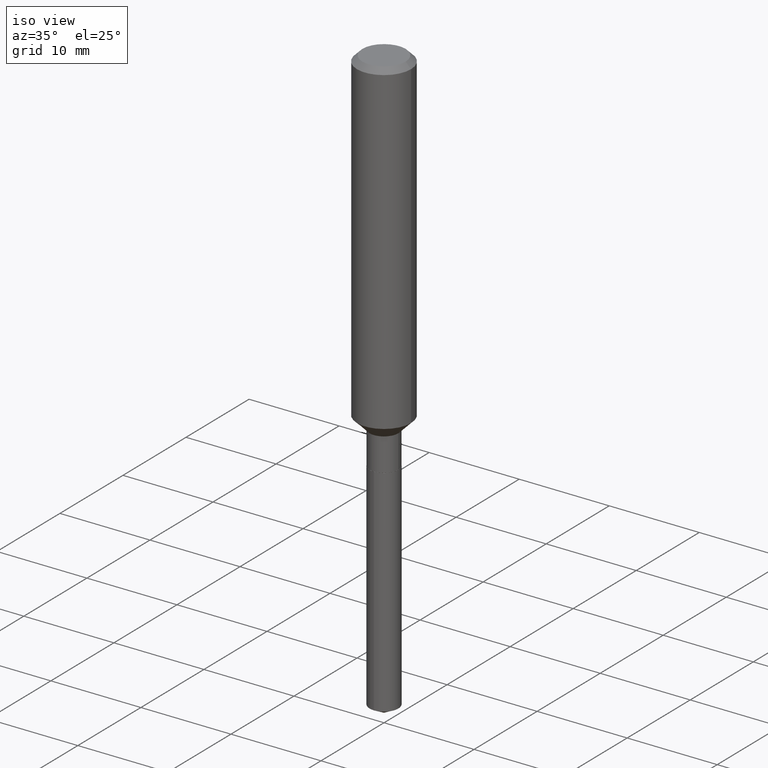
[diagram: clean part render]
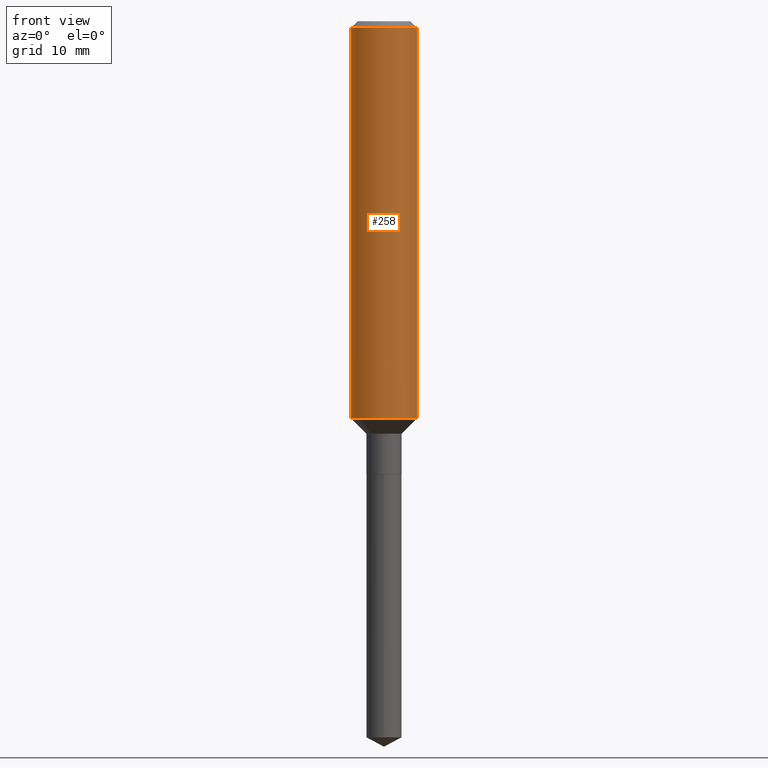
[diagram: tour spotlight — one face highlighted and labeled with its STEP entity id]
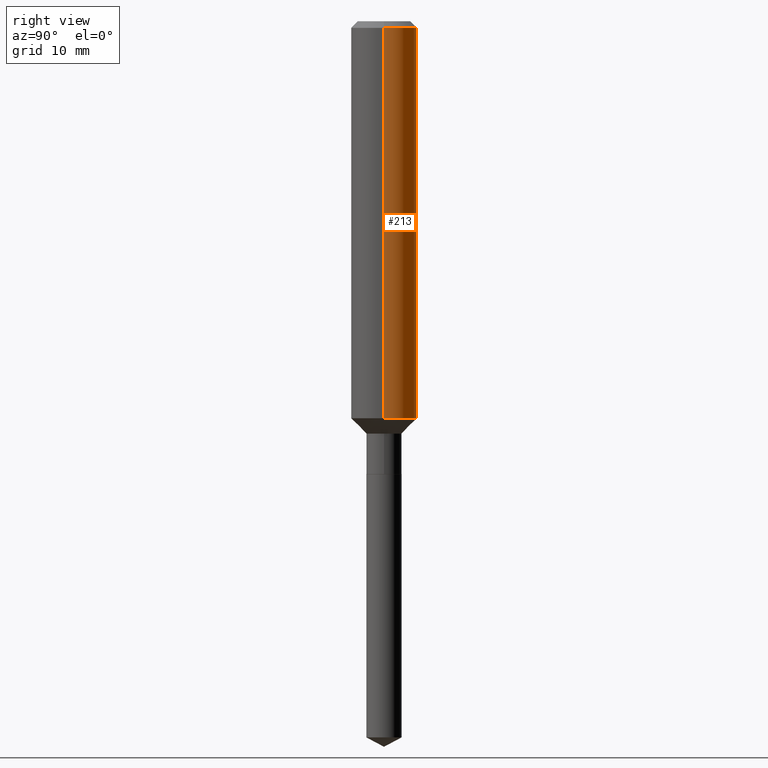
[diagram: tour spotlight — one face highlighted and labeled with its STEP entity id]
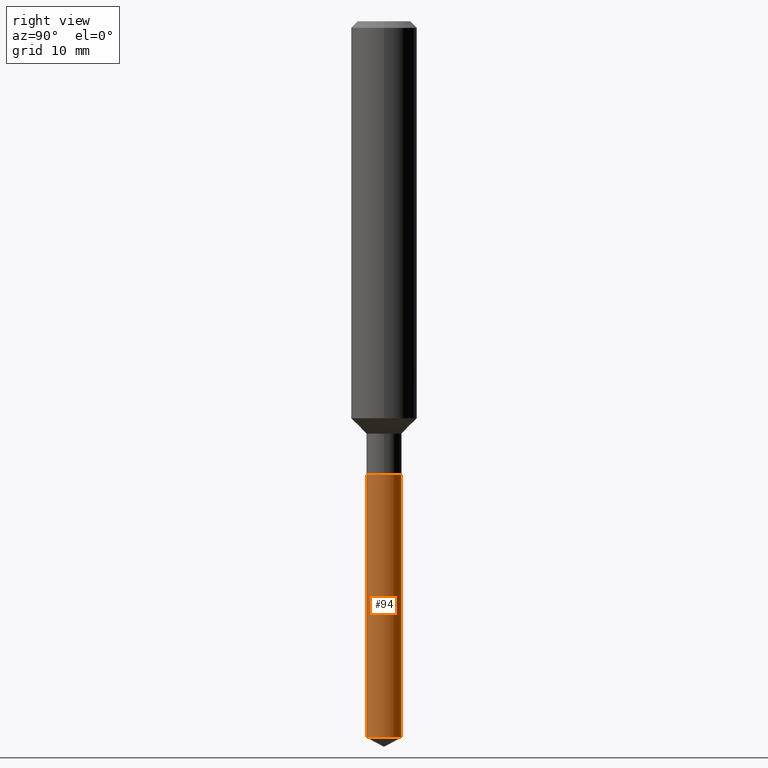
[diagram: tour spotlight — one face highlighted and labeled with its STEP entity id]
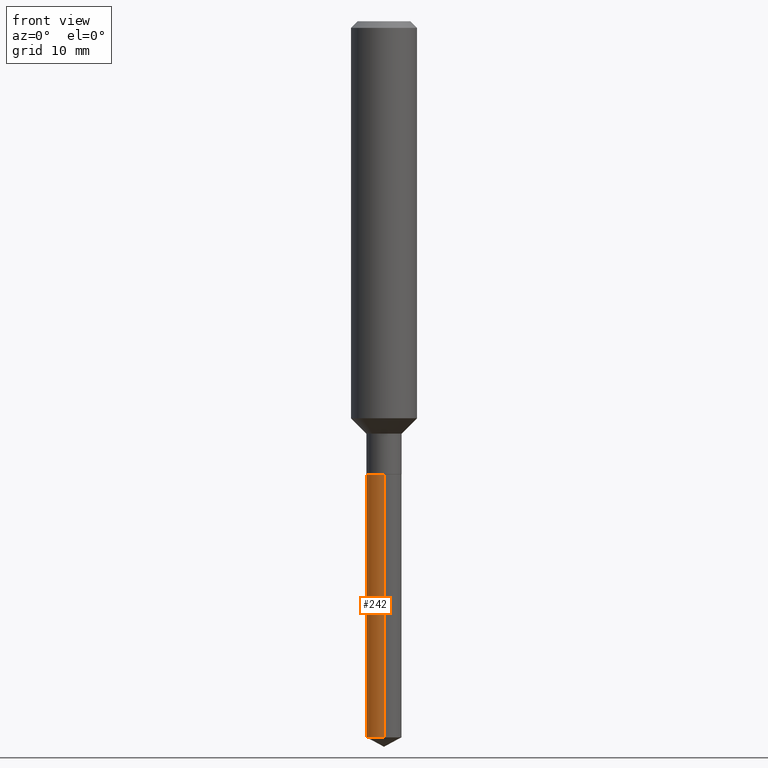
[diagram: tour spotlight — one face highlighted and labeled with its STEP entity id]
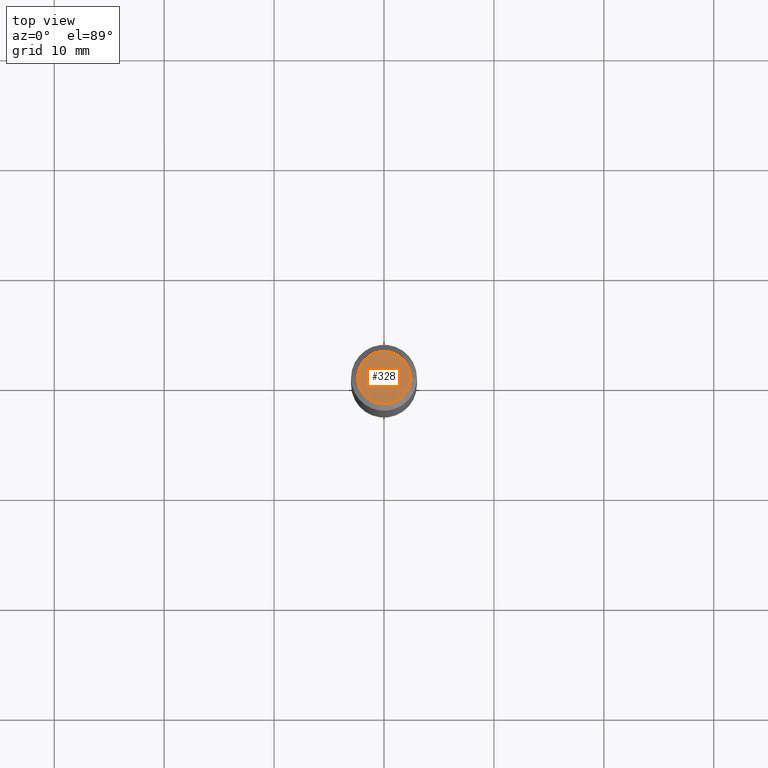
[diagram: tour spotlight — one face highlighted and labeled with its STEP entity id]
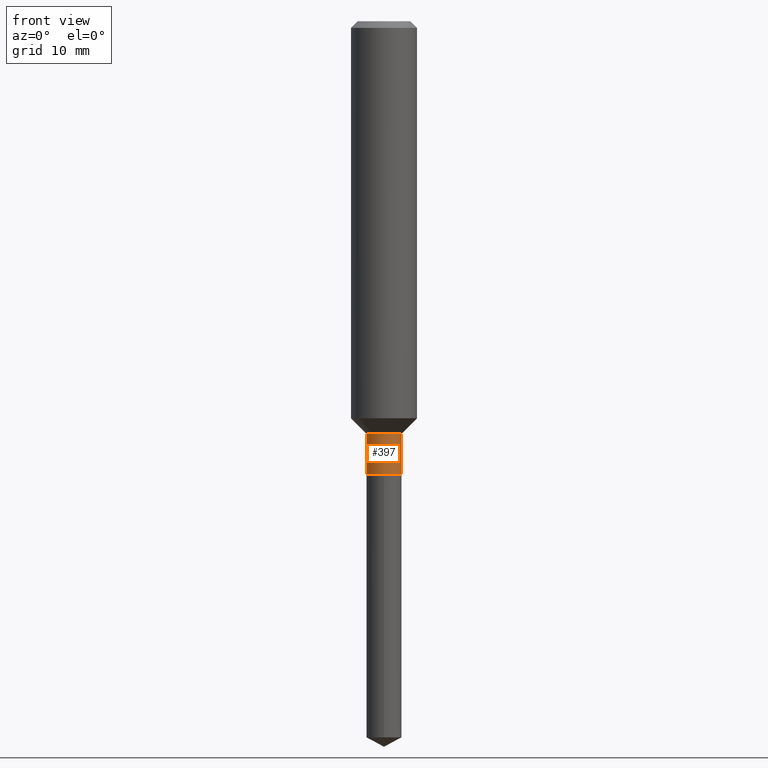
[diagram: tour spotlight — one face highlighted and labeled with its STEP entity id]
A machine part: a face-by-face anatomy tour. The part has 17 B-rep faces; the first image is the clean iso view, then the 6 largest visible faces are spotlighted one at a time (largest first), each with its STEP entity span.

Face 1 — front view, entity #258. In plain terms, the highlighted cylindrical surface (edge-blend (fillet) strip) has radius 2.9997 mm, axis along (-0, 0, 1).
Definition (entity closure, byte-faithful):
#14 = FACE_OUTER_BOUND ( 'NONE', #236, .T. ) ;
#42 = CIRCLE ( 'NONE', #251, 0.1180999999999999966 ) ;
#45 = DIRECTION ( 'NONE',  ( -2.445468806185136597E-29, 3.491481338843145583E-15, 1.000000000000000000 ) ) ;
#77 = CIRCLE ( 'NONE', #307, 0.1181000000000001632 ) ;
#91 = ORIENTED_EDGE ( 'NONE', *, *, #178, .T. ) ;
#95 = CARTESIAN_POINT ( 'NONE',  ( -0.1181000000000000799, 8.391509709326788873E-16, -5.809262341591047988E-30 ) ) ;
#110 = LINE ( 'NONE', #387, #118 ) ;
#113 = DIRECTION ( 'NONE',  ( 1.000000000000000000, -6.982962677686270655E-15, 0.000000000000000000 ) ) ;
#118 = VECTOR ( 'NONE', #240, 39.37007874015748143 ) ;
#120 = CARTESIAN_POINT ( 'NONE',  ( 0.000000000000000000, 0.000000000000000000, 0.000000000000000000 ) ) ;
#126 = VERTEX_POINT ( 'NONE', #190 ) ;
#129 = LINE ( 'NONE', #95, #471 ) ;
#144 = ORIENTED_EDGE ( 'NONE', *, *, #250, .T. ) ;
#160 = CARTESIAN_POINT ( 'NONE',  ( 0.1180999999999999966, -9.071566814582237199E-16, -0.02362000000000014435 ) ) ;
#173 = CARTESIAN_POINT ( 'NONE',  ( 5.776197320209328408E-31, -8.246878922347560526E-17, -0.02362000000000014435 ) ) ;
#178 = EDGE_CURVE ( 'NONE', #342, #473, #77, .T. ) ;
#188 = AXIS2_PLACEMENT_3D ( 'NONE', #120, #196, #200 ) ;
#190 = CARTESIAN_POINT ( 'NONE',  ( -0.1180999999999999966, -1.684526655596535031E-15, -0.02362000000000014435 ) ) ;
#196 = DIRECTION ( 'NONE',  ( -2.445468806185136597E-29, 3.491481338843145583E-15, 1.000000000000000000 ) ) ;
#200 = DIRECTION ( 'NONE',  ( 1.000000000000000000, -6.982962677686266711E-15, 4.876176775795936353E-29 ) ) ;
#207 = VERTEX_POINT ( 'NONE', #160 ) ;
#209 = DIRECTION ( 'NONE',  ( 1.000000000000000000, -6.982962677686266711E-15, 0.000000000000000000 ) ) ;
#236 = EDGE_LOOP ( 'NONE', ( #274, #91, #144, #485 ) ) ;
#240 = DIRECTION ( 'NONE',  ( -2.445468806185136877E-29, 3.491481338843145188E-15, 1.000000000000000000 ) ) ;
#243 = CARTESIAN_POINT ( 'NONE',  ( -0.1181000000000001632, -4.125735492902273590E-15, -1.421999999999999931 ) ) ;
#250 = EDGE_CURVE ( 'NONE', #473, #207, #110, .T. ) ;
#251 = AXIS2_PLACEMENT_3D ( 'NONE', #173, #477, #209 ) ;
#258 = ADVANCED_FACE ( 'NONE', ( #14 ), #466, .T. ) ;
#274 = ORIENTED_EDGE ( 'NONE', *, *, #357, .F. ) ;
#307 = AXIS2_PLACEMENT_3D ( 'NONE', #423, #45, #113 ) ;
#342 = VERTEX_POINT ( 'NONE', #243 ) ;
#357 = EDGE_CURVE ( 'NONE', #342, #126, #129, .T. ) ;
#387 = CARTESIAN_POINT ( 'NONE',  ( 0.1181000000000000799, -8.246878922347486570E-16, 5.758764772215004644E-30 ) ) ;
#390 = EDGE_CURVE ( 'NONE', #126, #207, #42, .T. ) ;
#399 = DIRECTION ( 'NONE',  ( -2.445468806185136877E-29, 3.491481338843145188E-15, 1.000000000000000000 ) ) ;
#423 = CARTESIAN_POINT ( 'NONE',  ( 3.477456642395264859E-29, -4.964886463834953365E-15, -1.421999999999999931 ) ) ;
#440 = CARTESIAN_POINT ( 'NONE',  ( 0.1181000000000001632, -5.789574356069702416E-15, -1.421999999999999931 ) ) ;
#466 = CYLINDRICAL_SURFACE ( 'NONE', #188, 0.1181000000000000799 ) ;
#471 = VECTOR ( 'NONE', #399, 39.37007874015748143 ) ;
#473 = VERTEX_POINT ( 'NONE', #440 ) ;
#477 = DIRECTION ( 'NONE',  ( -2.445468806185136597E-29, 3.491481338843145583E-15, 1.000000000000000000 ) ) ;
#485 = ORIENTED_EDGE ( 'NONE', *, *, #390, .F. ) ;

Face 2 — right view, entity #213. In plain terms, the highlighted cylindrical surface (edge-blend (fillet) strip) has radius 2.9997 mm, axis along (-0, 0, 1).
Definition (entity closure, byte-faithful):
#4 = AXIS2_PLACEMENT_3D ( 'NONE', #259, #373, #148 ) ;
#9 = CARTESIAN_POINT ( 'NONE',  ( 5.776197320209328408E-31, -8.246878922347560526E-17, -0.02362000000000014435 ) ) ;
#37 = EDGE_CURVE ( 'NONE', #473, #342, #266, .T. ) ;
#38 = CYLINDRICAL_SURFACE ( 'NONE', #438, 0.1181000000000000799 ) ;
#50 = ORIENTED_EDGE ( 'NONE', *, *, #37, .T. ) ;
#64 = ORIENTED_EDGE ( 'NONE', *, *, #357, .T. ) ;
#73 = EDGE_LOOP ( 'NONE', ( #50, #64, #311, #114 ) ) ;
#81 = DIRECTION ( 'NONE',  ( 1.000000000000000000, -6.982962677686266711E-15, 4.876176775795936353E-29 ) ) ;
#95 = CARTESIAN_POINT ( 'NONE',  ( -0.1181000000000000799, 8.391509709326788873E-16, -5.809262341591047988E-30 ) ) ;
#110 = LINE ( 'NONE', #387, #118 ) ;
#114 = ORIENTED_EDGE ( 'NONE', *, *, #250, .F. ) ;
#115 = CARTESIAN_POINT ( 'NONE',  ( 0.000000000000000000, 0.000000000000000000, 0.000000000000000000 ) ) ;
#118 = VECTOR ( 'NONE', #240, 39.37007874015748143 ) ;
#126 = VERTEX_POINT ( 'NONE', #190 ) ;
#129 = LINE ( 'NONE', #95, #471 ) ;
#148 = DIRECTION ( 'NONE',  ( 1.000000000000000000, -6.982962677686270655E-15, 0.000000000000000000 ) ) ;
#160 = CARTESIAN_POINT ( 'NONE',  ( 0.1180999999999999966, -9.071566814582237199E-16, -0.02362000000000014435 ) ) ;
#189 = CIRCLE ( 'NONE', #280, 0.1180999999999999966 ) ;
#190 = CARTESIAN_POINT ( 'NONE',  ( -0.1180999999999999966, -1.684526655596535031E-15, -0.02362000000000014435 ) ) ;
#206 = DIRECTION ( 'NONE',  ( 1.000000000000000000, -6.982962677686266711E-15, 0.000000000000000000 ) ) ;
#207 = VERTEX_POINT ( 'NONE', #160 ) ;
#213 = ADVANCED_FACE ( 'NONE', ( #469 ), #38, .T. ) ;
#240 = DIRECTION ( 'NONE',  ( -2.445468806185136877E-29, 3.491481338843145188E-15, 1.000000000000000000 ) ) ;
#243 = CARTESIAN_POINT ( 'NONE',  ( -0.1181000000000001632, -4.125735492902273590E-15, -1.421999999999999931 ) ) ;
#250 = EDGE_CURVE ( 'NONE', #473, #207, #110, .T. ) ;
#259 = CARTESIAN_POINT ( 'NONE',  ( 3.477456642395264859E-29, -4.964886463834953365E-15, -1.421999999999999931 ) ) ;
#266 = CIRCLE ( 'NONE', #4, 0.1181000000000001632 ) ;
#280 = AXIS2_PLACEMENT_3D ( 'NONE', #9, #351, #206 ) ;
#304 = EDGE_CURVE ( 'NONE', #207, #126, #189, .T. ) ;
#311 = ORIENTED_EDGE ( 'NONE', *, *, #304, .F. ) ;
#342 = VERTEX_POINT ( 'NONE', #243 ) ;
#351 = DIRECTION ( 'NONE',  ( -2.445468806185136597E-29, 3.491481338843145583E-15, 1.000000000000000000 ) ) ;
#357 = EDGE_CURVE ( 'NONE', #342, #126, #129, .T. ) ;
#373 = DIRECTION ( 'NONE',  ( -2.445468806185136597E-29, 3.491481338843145583E-15, 1.000000000000000000 ) ) ;
#387 = CARTESIAN_POINT ( 'NONE',  ( 0.1181000000000000799, -8.246878922347486570E-16, 5.758764772215004644E-30 ) ) ;
#399 = DIRECTION ( 'NONE',  ( -2.445468806185136877E-29, 3.491481338843145188E-15, 1.000000000000000000 ) ) ;
#426 = DIRECTION ( 'NONE',  ( -2.445468806185136597E-29, 3.491481338843145583E-15, 1.000000000000000000 ) ) ;
#438 = AXIS2_PLACEMENT_3D ( 'NONE', #115, #426, #81 ) ;
#440 = CARTESIAN_POINT ( 'NONE',  ( 0.1181000000000001632, -5.789574356069702416E-15, -1.421999999999999931 ) ) ;
#469 = FACE_OUTER_BOUND ( 'NONE', #73, .T. ) ;
#471 = VECTOR ( 'NONE', #399, 39.37007874015748143 ) ;
#473 = VERTEX_POINT ( 'NONE', #440 ) ;

Face 3 — right view, entity #94. In plain terms, the highlighted cylindrical surface (edge-blend (fillet) strip) has radius 1.6002 mm, axis along (-0, 0, 1).
Definition (entity closure, byte-faithful):
#25 = CARTESIAN_POINT ( 'NONE',  ( 4.476419235289259333E-16, 0.06299999999999433831, -1.622000000000000108 ) ) ;
#26 = DIRECTION ( 'NONE',  ( -2.439587243531311929E-29, 3.499904071321179502E-15, 1.000000000000000000 ) ) ;
#40 = EDGE_CURVE ( 'NONE', #66, #295, #406, .T. ) ;
#65 = FACE_OUTER_BOUND ( 'NONE', #252, .T. ) ;
#66 = VERTEX_POINT ( 'NONE', #143 ) ;
#94 = ADVANCED_FACE ( 'NONE', ( #65 ), #416, .T. ) ;
#128 = EDGE_CURVE ( 'NONE', #295, #327, #156, .T. ) ;
#133 = VECTOR ( 'NONE', #461, 39.37007874015748143 ) ;
#139 = EDGE_CURVE ( 'NONE', #366, #327, #157, .T. ) ;
#141 = ORIENTED_EDGE ( 'NONE', *, *, #128, .F. ) ;
#143 = CARTESIAN_POINT ( 'NONE',  ( -4.399266486941721593E-16, -0.06300000000000897937, -2.564902305805327298 ) ) ;
#156 = CIRCLE ( 'NONE', #244, 0.06300000000000000044 ) ;
#157 = LINE ( 'NONE', #388, #279 ) ;
#192 = ORIENTED_EDGE ( 'NONE', *, *, #40, .F. ) ;
#194 = CARTESIAN_POINT ( 'NONE',  ( 6.266842840771226956E-29, -8.963250350549775101E-15, -2.564902305805327298 ) ) ;
#216 = DIRECTION ( 'NONE',  ( -6.982962677686265922E-15, -1.000000000000000000, 4.336266656609941617E-15 ) ) ;
#227 = AXIS2_PLACEMENT_3D ( 'NONE', #368, #26, #216 ) ;
#244 = AXIS2_PLACEMENT_3D ( 'NONE', #334, #483, #413 ) ;
#245 = AXIS2_PLACEMENT_3D ( 'NONE', #194, #347, #270 ) ;
#252 = EDGE_LOOP ( 'NONE', ( #335, #486, #141, #192 ) ) ;
#270 = DIRECTION ( 'NONE',  ( -6.982962677686265133E-15, -1.000000000000000000, 0.000000000000000000 ) ) ;
#279 = VECTOR ( 'NONE', #313, 39.37007874015748143 ) ;
#284 = CARTESIAN_POINT ( 'NONE',  ( 4.476419235289257361E-16, 0.06299999999999104927, -2.564902305805327298 ) ) ;
#285 = CIRCLE ( 'NONE', #245, 0.06300000000000001432 ) ;
#291 = EDGE_CURVE ( 'NONE', #66, #366, #285, .T. ) ;
#295 = VERTEX_POINT ( 'NONE', #432 ) ;
#313 = DIRECTION ( 'NONE',  ( -2.439587243531311929E-29, 3.499904071321179897E-15, 1.000000000000000000 ) ) ;
#327 = VERTEX_POINT ( 'NONE', #25 ) ;
#334 = CARTESIAN_POINT ( 'NONE',  ( 3.966550403632290721E-29, -5.663182731603580825E-15, -1.621999999999999886 ) ) ;
#335 = ORIENTED_EDGE ( 'NONE', *, *, #291, .T. ) ;
#337 = CARTESIAN_POINT ( 'NONE',  ( -4.399266486941951349E-16, -0.06300000000000566258, -1.621999999999999442 ) ) ;
#347 = DIRECTION ( 'NONE',  ( -2.439587243531311929E-29, 3.499904071321179502E-15, 1.000000000000000000 ) ) ;
#366 = VERTEX_POINT ( 'NONE', #284 ) ;
#368 = CARTESIAN_POINT ( 'NONE',  ( 3.966550403632290721E-29, -5.663182731603580825E-15, -1.621999999999999886 ) ) ;
#388 = CARTESIAN_POINT ( 'NONE',  ( 4.476419235289027605E-16, 0.06299999999999433831, -1.622000000000000108 ) ) ;
#406 = LINE ( 'NONE', #337, #133 ) ;
#413 = DIRECTION ( 'NONE',  ( -6.982962677686265922E-15, -1.000000000000000000, 4.336266656609941617E-15 ) ) ;
#416 = CYLINDRICAL_SURFACE ( 'NONE', #227, 0.06300000000000000044 ) ;
#432 = CARTESIAN_POINT ( 'NONE',  ( -4.399266486941951349E-16, -0.06300000000000566258, -1.621999999999999442 ) ) ;
#461 = DIRECTION ( 'NONE',  ( -2.439587243531311929E-29, 3.499904071321179897E-15, 1.000000000000000000 ) ) ;
#483 = DIRECTION ( 'NONE',  ( -2.439587243531311929E-29, 3.499904071321179502E-15, 1.000000000000000000 ) ) ;
#486 = ORIENTED_EDGE ( 'NONE', *, *, #139, .T. ) ;

Face 4 — front view, entity #242. In plain terms, the highlighted cylindrical surface (edge-blend (fillet) strip) has radius 1.6002 mm, axis along (-0, 0, 1).
Definition (entity closure, byte-faithful):
#16 = CIRCLE ( 'NONE', #47, 0.06300000000000000044 ) ;
#25 = CARTESIAN_POINT ( 'NONE',  ( 4.476419235289259333E-16, 0.06299999999999433831, -1.622000000000000108 ) ) ;
#39 = DIRECTION ( 'NONE',  ( -2.439587243531311929E-29, 3.499904071321179502E-15, 1.000000000000000000 ) ) ;
#40 = EDGE_CURVE ( 'NONE', #66, #295, #406, .T. ) ;
#47 = AXIS2_PLACEMENT_3D ( 'NONE', #191, #39, #345 ) ;
#57 = EDGE_LOOP ( 'NONE', ( #346, #375, #232, #149 ) ) ;
#66 = VERTEX_POINT ( 'NONE', #143 ) ;
#82 = EDGE_CURVE ( 'NONE', #366, #66, #464, .T. ) ;
#84 = AXIS2_PLACEMENT_3D ( 'NONE', #229, #155, #305 ) ;
#133 = VECTOR ( 'NONE', #461, 39.37007874015748143 ) ;
#139 = EDGE_CURVE ( 'NONE', #366, #327, #157, .T. ) ;
#143 = CARTESIAN_POINT ( 'NONE',  ( -4.399266486941721593E-16, -0.06300000000000897937, -2.564902305805327298 ) ) ;
#149 = ORIENTED_EDGE ( 'NONE', *, *, #290, .F. ) ;
#155 = DIRECTION ( 'NONE',  ( -2.439587243531311929E-29, 3.499904071321179502E-15, 1.000000000000000000 ) ) ;
#157 = LINE ( 'NONE', #388, #279 ) ;
#191 = CARTESIAN_POINT ( 'NONE',  ( 3.966550403632290721E-29, -5.663182731603580825E-15, -1.621999999999999886 ) ) ;
#229 = CARTESIAN_POINT ( 'NONE',  ( 3.966550403632290721E-29, -5.663182731603580825E-15, -1.621999999999999886 ) ) ;
#232 = ORIENTED_EDGE ( 'NONE', *, *, #40, .T. ) ;
#235 = CYLINDRICAL_SURFACE ( 'NONE', #84, 0.06300000000000000044 ) ;
#242 = ADVANCED_FACE ( 'NONE', ( #463 ), #235, .T. ) ;
#262 = DIRECTION ( 'NONE',  ( -6.982962677686265133E-15, -1.000000000000000000, 0.000000000000000000 ) ) ;
#264 = DIRECTION ( 'NONE',  ( -2.439587243531311929E-29, 3.499904071321179502E-15, 1.000000000000000000 ) ) ;
#279 = VECTOR ( 'NONE', #313, 39.37007874015748143 ) ;
#284 = CARTESIAN_POINT ( 'NONE',  ( 4.476419235289257361E-16, 0.06299999999999104927, -2.564902305805327298 ) ) ;
#290 = EDGE_CURVE ( 'NONE', #327, #295, #16, .T. ) ;
#295 = VERTEX_POINT ( 'NONE', #432 ) ;
#305 = DIRECTION ( 'NONE',  ( -6.982962677686265922E-15, -1.000000000000000000, 4.336266656609941617E-15 ) ) ;
#313 = DIRECTION ( 'NONE',  ( -2.439587243531311929E-29, 3.499904071321179897E-15, 1.000000000000000000 ) ) ;
#327 = VERTEX_POINT ( 'NONE', #25 ) ;
#337 = CARTESIAN_POINT ( 'NONE',  ( -4.399266486941951349E-16, -0.06300000000000566258, -1.621999999999999442 ) ) ;
#345 = DIRECTION ( 'NONE',  ( -6.982962677686265922E-15, -1.000000000000000000, 4.336266656609941617E-15 ) ) ;
#346 = ORIENTED_EDGE ( 'NONE', *, *, #139, .F. ) ;
#348 = AXIS2_PLACEMENT_3D ( 'NONE', #451, #264, #262 ) ;
#366 = VERTEX_POINT ( 'NONE', #284 ) ;
#375 = ORIENTED_EDGE ( 'NONE', *, *, #82, .T. ) ;
#388 = CARTESIAN_POINT ( 'NONE',  ( 4.476419235289027605E-16, 0.06299999999999433831, -1.622000000000000108 ) ) ;
#406 = LINE ( 'NONE', #337, #133 ) ;
#432 = CARTESIAN_POINT ( 'NONE',  ( -4.399266486941951349E-16, -0.06300000000000566258, -1.621999999999999442 ) ) ;
#451 = CARTESIAN_POINT ( 'NONE',  ( 6.266842840771226956E-29, -8.963250350549775101E-15, -2.564902305805327298 ) ) ;
#461 = DIRECTION ( 'NONE',  ( -2.439587243531311929E-29, 3.499904071321179897E-15, 1.000000000000000000 ) ) ;
#463 = FACE_OUTER_BOUND ( 'NONE', #57, .T. ) ;
#464 = CIRCLE ( 'NONE', #348, 0.06300000000000001432 ) ;

Face 5 — top view, entity #328. In plain terms, the highlighted planar face has unit normal (0, -0, -1).
Definition (entity closure, byte-faithful):
#44 = DIRECTION ( 'NONE',  ( -2.445468806185136597E-29, 3.491481338843145583E-15, 1.000000000000000000 ) ) ;
#58 = AXIS2_PLACEMENT_3D ( 'NONE', #359, #59, #132 ) ;
#59 = DIRECTION ( 'NONE',  ( 2.438088387897960049E-29, -3.491481338843145188E-15, -1.000000000000000000 ) ) ;
#68 = CIRCLE ( 'NONE', #476, 0.09447999999999998066 ) ;
#80 = DIRECTION ( 'NONE',  ( -2.445468806185136597E-29, 3.491481338843145583E-15, 1.000000000000000000 ) ) ;
#132 = DIRECTION ( 'NONE',  ( -1.000000000000000000, 6.982962677686265922E-15, -4.876176775795935793E-29 ) ) ;
#135 = VERTEX_POINT ( 'NONE', #384 ) ;
#145 = EDGE_CURVE ( 'NONE', #135, #152, #68, .T. ) ;
#152 = VERTEX_POINT ( 'NONE', #272 ) ;
#163 = DIRECTION ( 'NONE',  ( 1.000000000000000000, -6.982962677686267499E-15, 4.875432709231658792E-29 ) ) ;
#202 = DIRECTION ( 'NONE',  ( 1.000000000000000000, -6.982962677686267499E-15, 4.875432709231658792E-29 ) ) ;
#272 = CARTESIAN_POINT ( 'NONE',  ( -0.09447999999999998066, 7.009847083995354710E-16, -1.928573779297727792E-17 ) ) ;
#283 = EDGE_CURVE ( 'NONE', #152, #135, #482, .T. ) ;
#299 = AXIS2_PLACEMENT_3D ( 'NONE', #355, #80, #202 ) ;
#316 = ORIENTED_EDGE ( 'NONE', *, *, #145, .T. ) ;
#319 = PLANE ( 'NONE',  #58 ) ;
#328 = ADVANCED_FACE ( 'NONE', ( #396 ), #319, .F. ) ;
#338 = ORIENTED_EDGE ( 'NONE', *, *, #283, .T. ) ;
#355 = CARTESIAN_POINT ( 'NONE',  ( 4.716267017698007905E-46, -6.733579360998555036E-32, -1.928573779297252010E-17 ) ) ;
#359 = CARTESIAN_POINT ( 'NONE',  ( 2.358133508849003952E-46, -3.366789680499277518E-32, -9.642868896486260050E-18 ) ) ;
#381 = CARTESIAN_POINT ( 'NONE',  ( 4.716267017698007905E-46, -6.733579360998555036E-32, -1.928573779297252010E-17 ) ) ;
#384 = CARTESIAN_POINT ( 'NONE',  ( 0.09447999999999998066, -7.704367267948738690E-16, -1.928573779296752193E-17 ) ) ;
#396 = FACE_OUTER_BOUND ( 'NONE', #460, .T. ) ;
#460 = EDGE_LOOP ( 'NONE', ( #338, #316 ) ) ;
#476 = AXIS2_PLACEMENT_3D ( 'NONE', #381, #44, #163 ) ;
#482 = CIRCLE ( 'NONE', #299, 0.09447999999999998066 ) ;

Face 6 — front view, entity #397. In plain terms, the highlighted cylindrical surface (edge-blend (fillet) strip) has radius 1.6002 mm, axis along (-0, 0, 1).
Definition (entity closure, byte-faithful):
#5 = CARTESIAN_POINT ( 'NONE',  ( -0.06300000000000001432, -4.961710114740822014E-15, -1.621499999999999941 ) ) ;
#7 = EDGE_CURVE ( 'NONE', #159, #63, #409, .T. ) ;
#10 = ORIENTED_EDGE ( 'NONE', *, *, #312, .F. ) ;
#11 = LINE ( 'NONE', #161, #420 ) ;
#20 = CARTESIAN_POINT ( 'NONE',  ( 0.000000000000000000, 0.000000000000000000, 0.000000000000000000 ) ) ;
#63 = VERTEX_POINT ( 'NONE', #186 ) ;
#85 = ORIENTED_EDGE ( 'NONE', *, *, #147, .F. ) ;
#86 = CARTESIAN_POINT ( 'NONE',  ( 0.06300000000000000044, -6.101363639628395575E-15, -1.621499999999999941 ) ) ;
#87 = DIRECTION ( 'NONE',  ( -2.445468806185136597E-29, 3.491481338843145583E-15, 1.000000000000000000 ) ) ;
#119 = VERTEX_POINT ( 'NONE', #456 ) ;
#122 = DIRECTION ( 'NONE',  ( 1.000000000000000000, -6.982962677686272233E-15, 0.000000000000000000 ) ) ;
#127 = VERTEX_POINT ( 'NONE', #5 ) ;
#147 = EDGE_CURVE ( 'NONE', #127, #119, #11, .T. ) ;
#159 = VERTEX_POINT ( 'NONE', #86 ) ;
#161 = CARTESIAN_POINT ( 'NONE',  ( -0.06299999999999998657, 4.476419235288630216E-16, -3.098929106860590303E-30 ) ) ;
#169 = CARTESIAN_POINT ( 'NONE',  ( 3.612201973616064901E-29, -5.157267085605210158E-15, -1.477099999999999858 ) ) ;
#186 = CARTESIAN_POINT ( 'NONE',  ( 0.06299999999999998657, -5.597193734299444834E-15, -1.477099999999999858 ) ) ;
#197 = AXIS2_PLACEMENT_3D ( 'NONE', #169, #249, #122 ) ;
#212 = DIRECTION ( 'NONE',  ( 1.000000000000000000, -6.982962677686266711E-15, 4.876176775795936353E-29 ) ) ;
#225 = ORIENTED_EDGE ( 'NONE', *, *, #265, .T. ) ;
#249 = DIRECTION ( 'NONE',  ( -2.445468806185136597E-29, 3.491481338843145583E-15, 1.000000000000000000 ) ) ;
#254 = DIRECTION ( 'NONE',  ( -2.445468806185136877E-29, 3.491481338843145188E-15, 1.000000000000000000 ) ) ;
#265 = EDGE_CURVE ( 'NONE', #127, #159, #400, .T. ) ;
#268 = DIRECTION ( 'NONE',  ( -2.445468806185136877E-29, 3.491481338843145188E-15, 1.000000000000000000 ) ) ;
#273 = CIRCLE ( 'NONE', #197, 0.06299999999999998657 ) ;
#282 = FACE_OUTER_BOUND ( 'NONE', #371, .T. ) ;
#312 = EDGE_CURVE ( 'NONE', #119, #63, #273, .T. ) ;
#314 = DIRECTION ( 'NONE',  ( 1.000000000000000000, -6.982962677686270655E-15, 0.000000000000000000 ) ) ;
#322 = ORIENTED_EDGE ( 'NONE', *, *, #7, .T. ) ;
#325 = CYLINDRICAL_SURFACE ( 'NONE', #343, 0.06299999999999998657 ) ;
#343 = AXIS2_PLACEMENT_3D ( 'NONE', #20, #87, #212 ) ;
#371 = EDGE_LOOP ( 'NONE', ( #85, #225, #322, #10 ) ) ;
#380 = CARTESIAN_POINT ( 'NONE',  ( 3.965327669229198480E-29, -5.661436990934160899E-15, -1.621499999999999941 ) ) ;
#397 = ADVANCED_FACE ( 'NONE', ( #282 ), #325, .T. ) ;
#400 = CIRCLE ( 'NONE', #421, 0.06300000000000000044 ) ;
#409 = LINE ( 'NONE', #454, #457 ) ;
#420 = VECTOR ( 'NONE', #268, 39.37007874015748143 ) ;
#421 = AXIS2_PLACEMENT_3D ( 'NONE', #380, #472, #314 ) ;
#454 = CARTESIAN_POINT ( 'NONE',  ( 0.06299999999999998657, -4.399266486942347259E-16, 3.071991368751439423E-30 ) ) ;
#456 = CARTESIAN_POINT ( 'NONE',  ( -0.06299999999999998657, -4.961710114740822014E-15, -1.477099999999999858 ) ) ;
#457 = VECTOR ( 'NONE', #254, 39.37007874015748143 ) ;
#472 = DIRECTION ( 'NONE',  ( -2.445468806185136597E-29, 3.491481338843145583E-15, 1.000000000000000000 ) ) ;